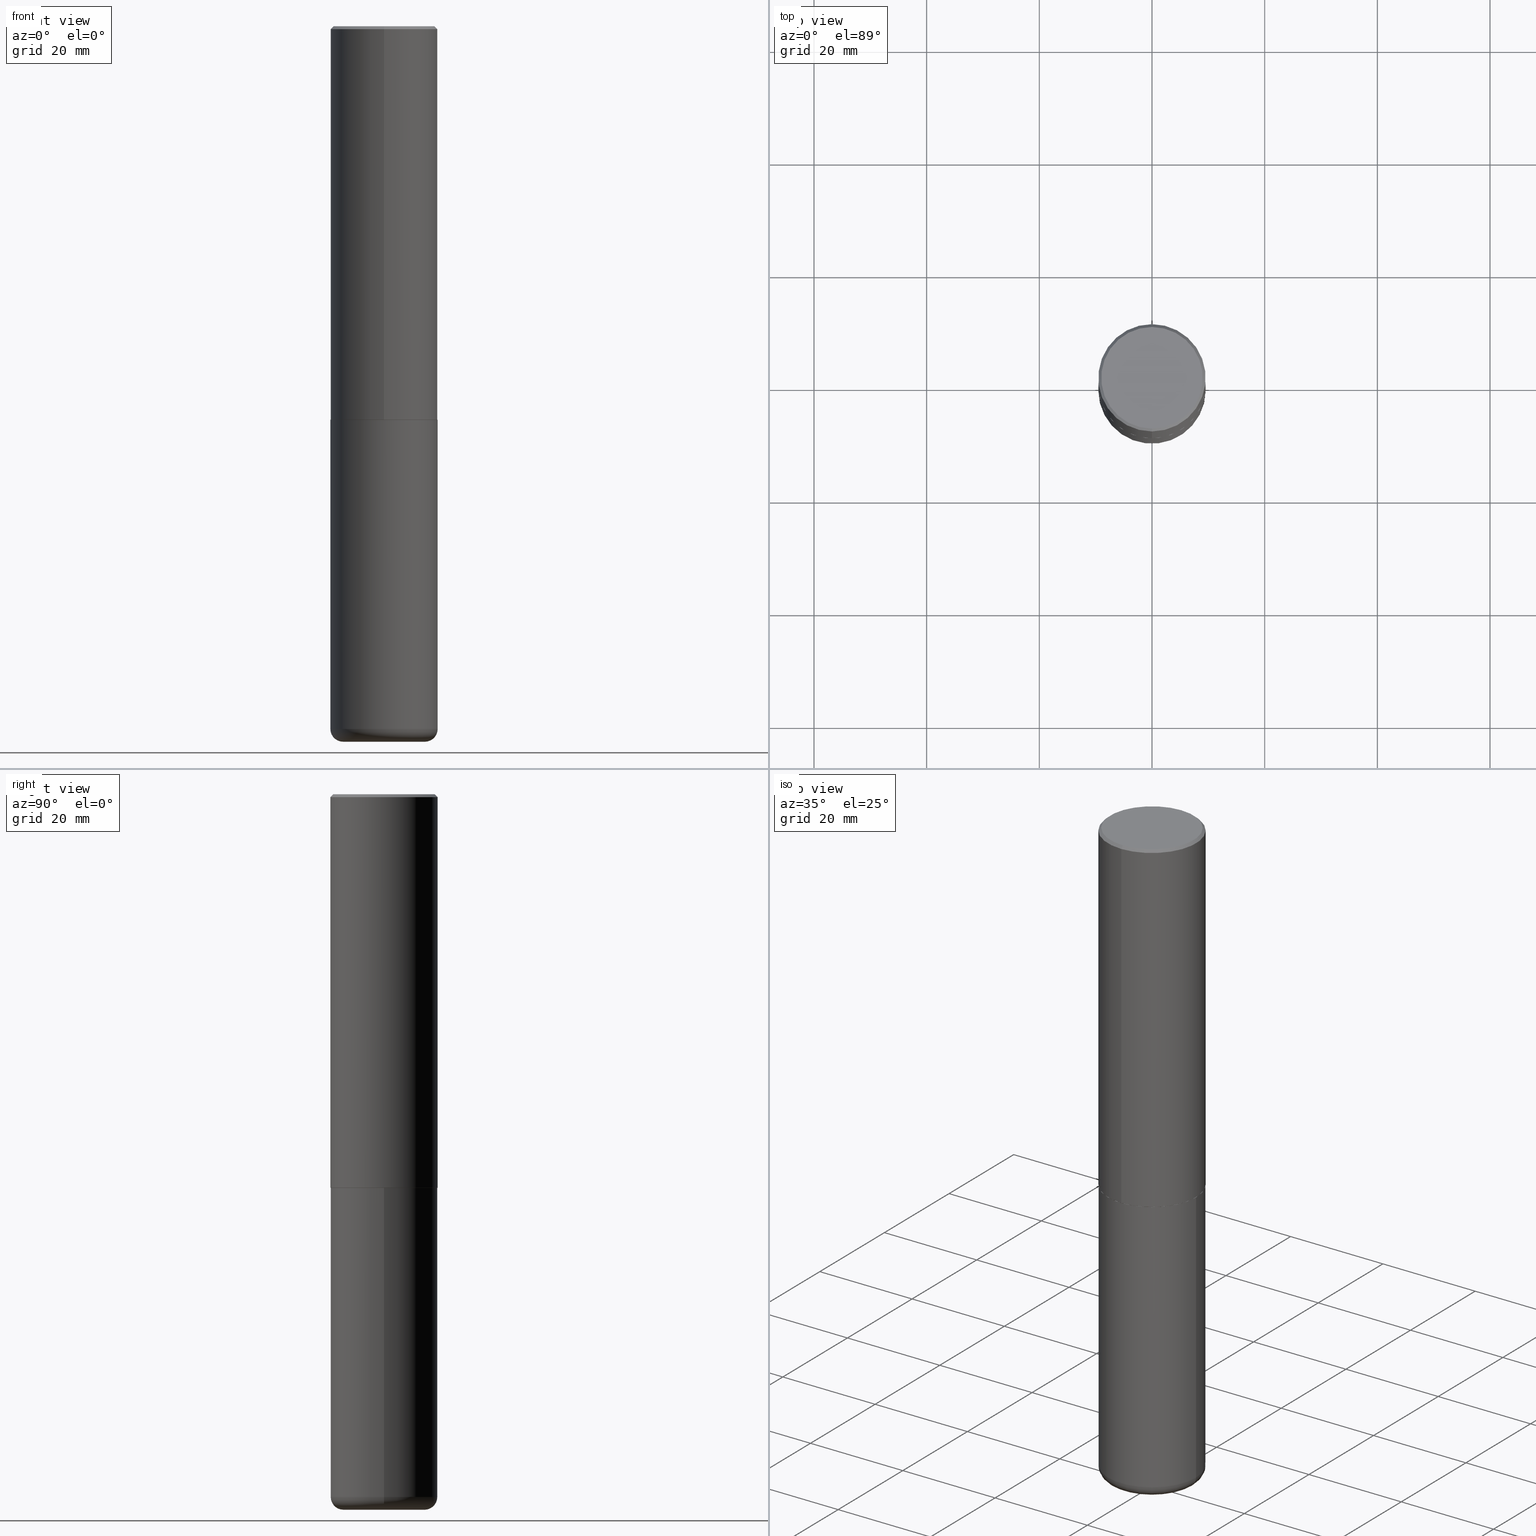
[diagram: canonical four-view strip — front | top / right | iso, engineering-drawing reading convention]
A machine part, canonical four-view strip (front | top / right | iso — engineering-drawing reading convention). The complete STEP part file that produces these views, byte-faithful:
ISO-10303-21;
HEADER;
FILE_DESCRIPTION (( 'STEP AP203' ),
    '1' );
FILE_NAME ('37658.STEP',
    '2024-03-02T07:15:18',
    ( '' ),
    ( '' ),
    'SwSTEP 2.0',
    'SolidWorks 2023',
    '' );
FILE_SCHEMA (( 'CONFIG_CONTROL_DESIGN' ));
ENDSEC;

DATA;
#1 = CONICAL_SURFACE ( 'NONE', #400, 0.3739999999999999991, 0.7853981633977213939 ) ;
#2 = DIRECTION ( 'NONE',  ( 1.000000000000000000, -6.982962677686269077E-15, 0.000000000000000000 ) ) ;
#3 = EDGE_CURVE ( 'NONE', #241, #293, #377, .T. ) ;
#4 = PRODUCT ( '37658', '37658', '', ( #370 ) ) ;
#5 = ORIENTED_EDGE ( 'NONE', *, *, #307, .F. ) ;
#6 = CARTESIAN_POINT ( 'NONE',  ( 6.724165036897648492E-29, -9.595832025636787455E-15, -2.749000000000000110 ) ) ;
#7 = EDGE_LOOP ( 'NONE', ( #394, #106, #360, #274 ) ) ;
#8 = DIRECTION ( 'NONE',  ( 1.000000000000000000, -6.982962677686269077E-15, 0.000000000000000000 ) ) ;
#9 = ORIENTED_EDGE ( 'NONE', *, *, #44, .T. ) ;
#10 = EDGE_CURVE ( 'NONE', #338, #136, #190, .T. ) ;
#11 = DIRECTION ( 'NONE',  ( -1.000000000000000000, 7.105427357600996337E-15, 0.000000000000000000 ) ) ;
#12 = CIRCLE ( 'NONE', #363, 0.08999999999999992728 ) ;
#13 = EDGE_LOOP ( 'NONE', ( #263, #389, #5, #268 ) ) ;
#14 = APPLICATION_PROTOCOL_DEFINITION ( 'international standard', 'config_control_design', 1994, #157 ) ;
#15 = DIRECTION ( 'NONE',  ( 0.000000000000000000, 0.000000000000000000, 1.000000000000000000 ) ) ;
#16 = EDGE_CURVE ( 'NONE', #366, #381, #24, .T. ) ;
#17 = VECTOR ( 'NONE', #99, 39.37007874015748143 ) ;
#18 = CC_DESIGN_APPROVAL ( #95, ( #122 ) ) ;
#19 = CARTESIAN_POINT ( 'NONE',  ( 0.3750000000000000555, -1.222018468595100145E-14, -2.750000000000000000 ) ) ;
#20 = EDGE_LOOP ( 'NONE', ( #239, #226 ) ) ;
#21 = COORDINATED_UNIVERSAL_TIME_OFFSET ( 5, 0, .BEHIND. ) ;
#22 = DIRECTION ( 'NONE',  ( 1.000000000000000000, -6.982962677686269077E-15, 4.883557194083113462E-29 ) ) ;
#23 = ADVANCED_FACE ( 'NONE', ( #194 ), #217, .T. ) ;
#24 = LINE ( 'NONE', #414, #339 ) ;
#25 = AXIS2_PLACEMENT_3D ( 'NONE', #124, #88, #22 ) ;
#26 = APPROVAL_ROLE ( '' ) ;
#27 = CARTESIAN_POINT ( 'NONE',  ( -2.618611004132351594E-15, -0.3750000000000002220, 1.308998548422625521E-15 ) ) ;
#28 = PERSON_AND_ORGANIZATION ( #143, #406 ) ;
#29 = DIRECTION ( 'NONE',  ( -6.982962677686266711E-15, -1.000000000000000000, 2.921762560068730595E-15 ) ) ;
#30 = SHAPE_DEFINITION_REPRESENTATION ( #145, #248 ) ;
#31 = ADVANCED_FACE ( 'NONE', ( #404 ), #1, .T. ) ;
#32 = FACE_OUTER_BOUND ( 'NONE', #327, .T. ) ;
#33 = CARTESIAN_POINT ( 'NONE',  ( 2.618611004132350411E-15, 0.3749999999999999445, -0.02000000000000139513 ) ) ;
#34 = CARTESIAN_POINT ( 'NONE',  ( 4.892080783483214581E-31, -6.981325591587361238E-17, -0.02000000000000008715 ) ) ;
#35 = DIRECTION ( 'NONE',  ( 1.000000000000000000, -6.982962677686266711E-15, 0.000000000000000000 ) ) ;
#36 = EDGE_LOOP ( 'NONE', ( #76, #331 ) ) ;
#37 = VECTOR ( 'NONE', #63, 39.37007874015748143 ) ;
#38 = LINE ( 'NONE', #260, #385 ) ;
#39 = ORIENTED_EDGE ( 'NONE', *, *, #271, .T. ) ;
#40 = CARTESIAN_POINT ( 'NONE',  ( 1.200725183836902132E-28, -1.714317337371984662E-14, -4.910000000000000142 ) ) ;
#41 = ADVANCED_FACE ( 'NONE', ( #32 ), #253, .F. ) ;
#42 = ORIENTED_EDGE ( 'NONE', *, *, #184, .F. ) ;
#43 = DIRECTION ( 'NONE',  ( 2.438088387897960049E-29, -3.491481338843145188E-15, -1.000000000000000000 ) ) ;
#44 = EDGE_CURVE ( 'NONE', #64, #104, #113, .T. ) ;
#45 = ORIENTED_EDGE ( 'NONE', *, *, #300, .F. ) ;
#46 = LINE ( 'NONE', #148, #170 ) ;
#47 = CIRCLE ( 'NONE', #109, 0.3549999999999999822 ) ;
#48 = EDGE_CURVE ( 'NONE', #118, #391, #47, .T. ) ;
#49 = CARTESIAN_POINT ( 'NONE',  ( 2.478951750578624209E-15, 0.3549999999999999822, -1.215853765202481601E-15 ) ) ;
#50 = UNCERTAINTY_MEASURE_WITH_UNIT (LENGTH_MEASURE( 1.000000000000000082E-05 ), #334, 'distance_accuracy_value', 'NONE');
#51 = DIRECTION ( 'NONE',  ( -2.445468806185136877E-29, 3.491481338843145188E-15, 1.000000000000000000 ) ) ;
#52 = VERTEX_POINT ( 'NONE', #280 ) ;
#53 = AXIS2_PLACEMENT_3D ( 'NONE', #313, #56, #375 ) ;
#54 = DATE_TIME_ROLE ( 'creation_date' ) ;
#55 = CYLINDRICAL_SURFACE ( 'NONE', #141, 0.3749999999999999445 ) ;
#56 = DIRECTION ( 'NONE',  ( -2.446040391741596045E-29, 3.490662795793665557E-15, 1.000000000000000000 ) ) ;
#57 = PERSON_AND_ORGANIZATION_ROLE ( 'classification_officer' ) ;
#58 = DIRECTION ( 'NONE',  ( -2.445468806185136877E-29, 3.491481338843145188E-15, 1.000000000000000000 ) ) ;
#59 = LOCAL_TIME ( 2, 15, 18.00000000000000000, #21 ) ;
#60 = DIRECTION ( 'NONE',  ( -2.446040391741596606E-29, 3.490662795793665557E-15, 1.000000000000000000 ) ) ;
#61 = EDGE_CURVE ( 'NONE', #136, #348, #412, .T. ) ;
#62 = PERSON_AND_ORGANIZATION ( #143, #406 ) ;
#63 = DIRECTION ( 'NONE',  ( 5.024295867789434219E-15, 0.7071067811867430830, 0.7071067811863519514 ) ) ;
#64 = VERTEX_POINT ( 'NONE', #344 ) ;
#65 = CARTESIAN_POINT ( 'NONE',  ( 6.726611077289389265E-29, -9.599322688432580971E-15, -2.750000000000000000 ) ) ;
#66 = AXIS2_PLACEMENT_3D ( 'NONE', #410, #126, #380 ) ;
#67 = CARTESIAN_POINT ( 'NONE',  ( -2.611628041454596160E-15, -0.3740000000000096581, -2.749999999999998668 ) ) ;
#68 = ADVANCED_FACE ( 'NONE', ( #154 ), #55, .T. ) ;
#69 = DIRECTION ( 'NONE',  ( -2.446040391741596606E-29, 3.490662795793665557E-15, 1.000000000000000000 ) ) ;
#70 = CARTESIAN_POINT ( 'NONE',  ( 0.000000000000000000, 0.000000000000000000, 0.000000000000000000 ) ) ;
#71 = ORIENTED_EDGE ( 'NONE', *, *, #86, .T. ) ;
#72 = CIRCLE ( 'NONE', #303, 0.3750000000000000555 ) ;
#73 = DIRECTION ( 'NONE',  ( 1.000000000000000000, -6.982962677686273810E-15, 0.000000000000000000 ) ) ;
#74 = ORIENTED_EDGE ( 'NONE', *, *, #283, .F. ) ;
#75 = ADVANCED_FACE ( 'NONE', ( #409 ), #225, .F. ) ;
#76 = ORIENTED_EDGE ( 'NONE', *, *, #214, .T. ) ;
#77 = PERSON_AND_ORGANIZATION ( #143, #406 ) ;
#78 = ORIENTED_EDGE ( 'NONE', *, *, #408, .T. ) ;
#79 = CIRCLE ( 'NONE', #413, 0.3739999999999999991 ) ;
#80 = DIRECTION ( 'NONE',  ( 7.105427357601001859E-15, 1.000000000000000000, -3.491481338843145583E-15 ) ) ;
#81 = LOCAL_TIME ( 2, 15, 18.00000000000000000, #112 ) ;
#82 = APPROVAL ( #269, 'UNSPECIFIED' ) ;
#83 = DIRECTION ( 'NONE',  ( -1.000000000000000000, 6.982962677686265922E-15, -4.876176775795935793E-29 ) ) ;
#84 = ORIENTED_EDGE ( 'NONE', *, *, #3, .T. ) ;
#85 = CONICAL_SURFACE ( 'NONE', #333, 0.3739999999999999991, 0.7853981633977213939 ) ;
#86 = EDGE_CURVE ( 'NONE', #306, #381, #249, .T. ) ;
#87 = APPROVAL_STATUS ( 'not_yet_approved' ) ;
#88 = DIRECTION ( 'NONE',  ( -2.445468806185136597E-29, 3.491481338843145583E-15, 1.000000000000000000 ) ) ;
#89 = PERSON_AND_ORGANIZATION ( #143, #406 ) ;
#90 = CARTESIAN_POINT ( 'NONE',  ( 6.726611077289389265E-29, -9.599322688432580971E-15, -2.750000000000000000 ) ) ;
#91 = COORDINATED_UNIVERSAL_TIME_OFFSET ( 5, 0, .BEHIND. ) ;
#92 = CARTESIAN_POINT ( 'NONE',  ( -1.141397163745304909E-45, 1.628849886601155835E-31, 4.666305460853910467E-17 ) ) ;
#93 = AXIS2_PLACEMENT_3D ( 'NONE', #296, #43, #83 ) ;
#94 = AXIS2_PLACEMENT_3D ( 'NONE', #301, #15, #240 ) ;
#95 = APPROVAL ( #96, 'UNSPECIFIED' ) ;
#96 = APPROVAL_STATUS ( 'not_yet_approved' ) ;
#97 = FACE_OUTER_BOUND ( 'NONE', #291, .T. ) ;
#98 = ORIENTED_EDGE ( 'NONE', *, *, #319, .F. ) ;
#99 = DIRECTION ( 'NONE',  ( -2.446040391741596606E-29, 3.490662795793665557E-15, 1.000000000000000000 ) ) ;
#100 = DIRECTION ( 'NONE',  ( -2.445468806185136597E-29, 3.491481338843145583E-15, 1.000000000000000000 ) ) ;
#101 = CIRCLE ( 'NONE', #121, 0.08999999999999992728 ) ;
#102 = CARTESIAN_POINT ( 'NONE',  ( 2.660982545421643429E-15, 0.3739999999999903957, -2.750000000000000888 ) ) ;
#103 = DIRECTION ( 'NONE',  ( -2.446040391741596606E-29, 3.490662795793665557E-15, 1.000000000000000000 ) ) ;
#104 = VERTEX_POINT ( 'NONE', #257 ) ;
#105 = FACE_OUTER_BOUND ( 'NONE', #403, .T. ) ;
#106 = ORIENTED_EDGE ( 'NONE', *, *, #214, .F. ) ;
#107 = CLOSED_SHELL ( 'NONE', ( #31, #337, #108, #116, #130, #215, #75, #382 ) ) ;
#108 = ADVANCED_FACE ( 'NONE', ( #97 ), #192, .T. ) ;
#109 = AXIS2_PLACEMENT_3D ( 'NONE', #92, #350, #308 ) ;
#110 = EDGE_LOOP ( 'NONE', ( #365, #364, #177, #74 ) ) ;
#111 = ORIENTED_EDGE ( 'NONE', *, *, #86, .F. ) ;
#112 = COORDINATED_UNIVERSAL_TIME_OFFSET ( 5, 0, .BEHIND. ) ;
#113 = CIRCLE ( 'NONE', #178, 0.2850000000000000311 ) ;
#114 = CARTESIAN_POINT ( 'NONE',  ( 6.724165036897648492E-29, -9.595832025636787455E-15, -2.749000000000000110 ) ) ;
#115 = DIRECTION ( 'NONE',  ( 1.000000000000000000, -6.982962677686269077E-15, 4.883557194083113462E-29 ) ) ;
#116 = ADVANCED_FACE ( 'NONE', ( #160 ), #205, .T. ) ;
#117 = DATE_AND_TIME ( #119, #304 ) ;
#118 = VERTEX_POINT ( 'NONE', #188 ) ;
#119 = CALENDAR_DATE ( 2024, 2, 3 ) ;
#120 = CARTESIAN_POINT ( 'NONE',  ( 6.726611077289389265E-29, -9.599322688432580971E-15, -2.750000000000000000 ) ) ;
#121 = AXIS2_PLACEMENT_3D ( 'NONE', #232, #204, #73 ) ;
#122 = SECURITY_CLASSIFICATION ( '', '', #195 ) ;
#123 = APPROVAL_DATE_TIME ( #117, #329 ) ;
#124 = CARTESIAN_POINT ( 'NONE',  ( 1.200725183836902132E-28, -1.714317337371984662E-14, -4.910000000000000142 ) ) ;
#125 = PERSON_AND_ORGANIZATION_ROLE ( 'creator' ) ;
#126 = DIRECTION ( 'NONE',  ( -2.445468806185136597E-29, 3.491481338843145583E-15, 1.000000000000000000 ) ) ;
#127 = EDGE_CURVE ( 'NONE', #104, #64, #230, .T. ) ;
#128 = CARTESIAN_POINT ( 'NONE',  ( 0.000000000000000000, 0.000000000000000000, 0.000000000000000000 ) ) ;
#129 = DIRECTION ( 'NONE',  ( 1.000000000000000000, -6.982962677686266711E-15, 4.876176775795935793E-29 ) ) ;
#130 = ADVANCED_FACE ( 'NONE', ( #105 ), #386, .T. ) ;
#131 = CARTESIAN_POINT ( 'NONE',  ( -2.618611004132284935E-15, -0.3750000000000099920, -2.748999999999999222 ) ) ;
#132 = LINE ( 'NONE', #33, #155 ) ;
#133 = CLOSED_SHELL ( 'NONE', ( #68, #23, #41, #197, #346, #341 ) ) ;
#134 = AXIS2_PLACEMENT_3D ( 'NONE', #40, #234, #8 ) ;
#135 = DIRECTION ( 'NONE',  ( -4.851104656540954809E-15, -0.7071067811865486830, -0.7071067811865463515 ) ) ;
#136 = VERTEX_POINT ( 'NONE', #102 ) ;
#137 = DIRECTION ( 'NONE',  ( -6.982962677686266711E-15, -1.000000000000000000, 2.921762560068730595E-15 ) ) ;
#138 = EDGE_LOOP ( 'NONE', ( #396, #330, #287, #208 ) ) ;
#139 = FACE_OUTER_BOUND ( 'NONE', #266, .T. ) ;
#140 = ORIENTED_EDGE ( 'NONE', *, *, #388, .F. ) ;
#141 = AXIS2_PLACEMENT_3D ( 'NONE', #128, #256, #129 ) ;
#142 = ORIENTED_EDGE ( 'NONE', *, *, #184, .T. ) ;
#143 = PERSON ( 'UNSPECIFIED', 'UNSPECIFIED', 'UNSPECIFIED', ('UNSPECIFIED'), ('UNSPECIFIED'), ('UNSPECIFIED') ) ;
#144 = PERSON_AND_ORGANIZATION ( #143, #406 ) ;
#145 = PRODUCT_DEFINITION_SHAPE ( 'NONE', 'NONE',  #361 ) ;
#146 = CARTESIAN_POINT ( 'NONE',  ( 2.664535259100411196E-15, 0.3749999999999907296, -2.749000000000000998 ) ) ;
#147 = TOROIDAL_SURFACE ( 'NONE', #379, 0.2850000000000000311, 0.08999999999999989952 ) ;
#148 = CARTESIAN_POINT ( 'NONE',  ( -0.3749999999999999445, 2.664535259100375303E-15, -1.844600658845589318E-29 ) ) ;
#149 = CC_DESIGN_APPROVAL ( #329, ( #200 ) ) ;
#150 = DESIGN_CONTEXT ( 'detailed design', #157, 'design' ) ;
#151 = PLANE ( 'NONE',  #393 ) ;
#152 = ORIENTED_EDGE ( 'NONE', *, *, #408, .F. ) ;
#153 = DATE_TIME_ROLE ( 'classification_date' ) ;
#154 = FACE_OUTER_BOUND ( 'NONE', #297, .T. ) ;
#155 = VECTOR ( 'NONE', #416, 39.37007874015748143 ) ;
#156 = DIRECTION ( 'NONE',  ( 1.000000000000000000, -6.982962677686266711E-15, 0.000000000000000000 ) ) ;
#157 = APPLICATION_CONTEXT ( 'configuration controlled 3d designs of mechanical parts and assemblies' ) ;
#158 = CARTESIAN_POINT ( 'NONE',  ( 6.725039217009124520E-29, -9.601573681818649859E-15, -2.750000000000000000 ) ) ;
#159 = ORIENTED_EDGE ( 'NONE', *, *, #300, .T. ) ;
#160 = FACE_OUTER_BOUND ( 'NONE', #7, .T. ) ;
#161 = AXIS2_PLACEMENT_3D ( 'NONE', #34, #103, #174 ) ;
#162 = CC_DESIGN_DATE_AND_TIME_ASSIGNMENT ( #349, #54, ( #361 ) ) ;
#163 = ORIENTED_EDGE ( 'NONE', *, *, #307, .T. ) ;
#164 = CARTESIAN_POINT ( 'NONE',  ( 2.664535259100376880E-15, 0.3750000000000002220, -1.308998548422625521E-15 ) ) ;
#165 = EDGE_CURVE ( 'NONE', #136, #338, #79, .T. ) ;
#166 = CYLINDRICAL_SURFACE ( 'NONE', #168, 0.3749999999999999445 ) ;
#167 = LINE ( 'NONE', #236, #255 ) ;
#168 = AXIS2_PLACEMENT_3D ( 'NONE', #198, #289, #171 ) ;
#169 = ORIENTED_EDGE ( 'NONE', *, *, #283, .T. ) ;
#170 = VECTOR ( 'NONE', #51, 39.37007874015748143 ) ;
#171 = DIRECTION ( 'NONE',  ( 1.000000000000000000, -6.982962677686266711E-15, 4.876176775795935793E-29 ) ) ;
#172 = CC_DESIGN_PERSON_AND_ORGANIZATION_ASSIGNMENT ( #62, #342, ( #200 ) ) ;
#173 = ORIENTED_EDGE ( 'NONE', *, *, #415, .T. ) ;
#174 = DIRECTION ( 'NONE',  ( -6.982962677686265922E-15, -1.000000000000000000, 3.494488891895536035E-15 ) ) ;
#175 = ORIENTED_EDGE ( 'NONE', *, *, #10, .F. ) ;
#176 = APPLICATION_PROTOCOL_DEFINITION ( 'international standard', 'config_control_design', 1994, #322 ) ;
#177 = ORIENTED_EDGE ( 'NONE', *, *, #238, .T. ) ;
#178 = AXIS2_PLACEMENT_3D ( 'NONE', #378, #193, #156 ) ;
#179 = LOCAL_TIME ( 2, 15, 18.00000000000000000, #91 ) ;
#180 = DIRECTION ( 'NONE',  ( 6.982962677686265922E-15, 1.000000000000000000, -3.490662795793665557E-15 ) ) ;
#181 = CIRCLE ( 'NONE', #286, 0.3549999999999999822 ) ;
#182 = CARTESIAN_POINT ( 'NONE',  ( 1.200725183836902132E-28, -1.714317337371984662E-14, -4.910000000000000142 ) ) ;
#183 = AXIS2_PLACEMENT_3D ( 'NONE', #114, #216, #336 ) ;
#184 = EDGE_CURVE ( 'NONE', #293, #52, #340, .T. ) ;
#185 = ORIENTED_EDGE ( 'NONE', *, *, #16, .T. ) ;
#186 = DATE_AND_TIME ( #402, #179 ) ;
#187 = DIRECTION ( 'NONE',  ( 6.982962677686265922E-15, 1.000000000000000000, -3.494488891895536035E-15 ) ) ;
#188 = CARTESIAN_POINT ( 'NONE',  ( -2.504081769186608216E-15, -0.3549999999999999822, 1.285848347115290366E-15 ) ) ;
#189 = EDGE_CURVE ( 'NONE', #104, #366, #101, .T. ) ;
#190 = CIRCLE ( 'NONE', #418, 0.3739999999999999991 ) ;
#191 = APPROVAL_DATE_TIME ( #186, #95 ) ;
#192 = CONICAL_SURFACE ( 'NONE', #347, 0.3750000000000000555, 0.7853981633974465026 ) ;
#193 = DIRECTION ( 'NONE',  ( -2.445468806185136597E-29, 3.491481338843145583E-15, 1.000000000000000000 ) ) ;
#194 = FACE_OUTER_BOUND ( 'NONE', #13, .T. ) ;
#195 = SECURITY_CLASSIFICATION_LEVEL ( 'unclassified' ) ;
#196 = CARTESIAN_POINT ( 'NONE',  ( 4.892080783483214581E-31, -6.981325591587361238E-17, -0.02000000000000008715 ) ) ;
#197 = ADVANCED_FACE ( 'NONE', ( #139 ), #166, .T. ) ;
#198 = CARTESIAN_POINT ( 'NONE',  ( 0.000000000000000000, 0.000000000000000000, 0.000000000000000000 ) ) ;
#199 = CIRCLE ( 'NONE', #211, 0.3749999999999999445 ) ;
#200 = PRODUCT_DEFINITION_FORMATION_WITH_SPECIFIED_SOURCE ( 'ANY', '', #4, .NOT_KNOWN. ) ;
#201 = FACE_OUTER_BOUND ( 'NONE', #20, .T. ) ;
#202 = CARTESIAN_POINT ( 'NONE',  ( -2.572686749164323547E-15, -0.3750000000000001110, -0.01999999999999877570 ) ) ;
#203 = EDGE_CURVE ( 'NONE', #348, #52, #417, .T. ) ;
#204 = DIRECTION ( 'NONE',  ( -6.982962677686266711E-15, -1.000000000000000000, 3.491481338843145583E-15 ) ) ;
#205 = CONICAL_SURFACE ( 'NONE', #278, 0.3750000000000000555, 0.7853981633974465026 ) ;
#206 = VERTEX_POINT ( 'NONE', #358 ) ;
#207 = CARTESIAN_POINT ( 'NONE',  ( -1.141397163745304909E-45, 1.628849886601155835E-31, 4.666305460853910467E-17 ) ) ;
#208 = ORIENTED_EDGE ( 'NONE', *, *, #238, .F. ) ;
#209 = ORIENTED_EDGE ( 'NONE', *, *, #189, .T. ) ;
#210 = EDGE_LOOP ( 'NONE', ( #173, #219, #42, #235 ) ) ;
#211 = AXIS2_PLACEMENT_3D ( 'NONE', #384, #100, #2 ) ;
#212 = CARTESIAN_POINT ( 'NONE',  ( 4.892080783483214581E-31, -6.981325591587361238E-17, -0.02000000000000008715 ) ) ;
#213 = FACE_OUTER_BOUND ( 'NONE', #254, .T. ) ;
#214 = EDGE_CURVE ( 'NONE', #391, #118, #181, .T. ) ;
#215 = ADVANCED_FACE ( 'NONE', ( #318 ), #85, .T. ) ;
#216 = DIRECTION ( 'NONE',  ( -2.446040391741596606E-29, 3.490662795793665557E-15, 1.000000000000000000 ) ) ;
#217 = TOROIDAL_SURFACE ( 'NONE', #25, 0.2850000000000000311, 0.08999999999999989952 ) ;
#218 = CALENDAR_DATE ( 2024, 2, 3 ) ;
#219 = ORIENTED_EDGE ( 'NONE', *, *, #203, .T. ) ;
#220 = ORIENTED_EDGE ( 'NONE', *, *, #165, .F. ) ;
#221 = MANIFOLD_SOLID_BREP ( 'Body-Move/Copy2[1]', #133 ) ;
#222 = DIRECTION ( 'NONE',  ( -2.446040391741596606E-29, 3.490662795793665557E-15, 1.000000000000000000 ) ) ;
#223 = CARTESIAN_POINT ( 'NONE',  ( 2.657429831742841742E-15, 0.3739999999999903957, -2.750000000000000888 ) ) ;
#224 = PERSON_AND_ORGANIZATION_ROLE ( 'creator' ) ;
#225 = PLANE ( 'NONE',  #53 ) ;
#226 = ORIENTED_EDGE ( 'NONE', *, *, #44, .F. ) ;
#227 = EDGE_CURVE ( 'NONE', #391, #52, #132, .T. ) ;
#228 = DIRECTION ( 'NONE',  ( -2.446040391741596606E-29, 3.490662795793665557E-15, 1.000000000000000000 ) ) ;
#229 = FACE_OUTER_BOUND ( 'NONE', #210, .T. ) ;
#230 = CIRCLE ( 'NONE', #354, 0.2850000000000000311 ) ;
#231 = CC_DESIGN_SECURITY_CLASSIFICATION ( #122, ( #200 ) ) ;
#232 = CARTESIAN_POINT ( 'NONE',  ( 0.2850000000000000311, -1.913331773686043011E-14, -4.910000000000000142 ) ) ;
#233 = CC_DESIGN_DATE_AND_TIME_ASSIGNMENT ( #376, #153, ( #122 ) ) ;
#234 = DIRECTION ( 'NONE',  ( -2.445468806185136597E-29, 3.491481338843145583E-15, 1.000000000000000000 ) ) ;
#235 = ORIENTED_EDGE ( 'NONE', *, *, #3, .F. ) ;
#236 = CARTESIAN_POINT ( 'NONE',  ( -2.611628041454596160E-15, -0.3740000000000096581, -2.749999999999998668 ) ) ;
#237 = ORIENTED_EDGE ( 'NONE', *, *, #227, .F. ) ;
#238 = EDGE_CURVE ( 'NONE', #338, #241, #167, .T. ) ;
#239 = ORIENTED_EDGE ( 'NONE', *, *, #127, .F. ) ;
#240 = DIRECTION ( 'NONE',  ( 1.000000000000000000, 0.000000000000000000, 0.000000000000000000 ) ) ;
#241 = VERTEX_POINT ( 'NONE', #131 ) ;
#242 = AXIS2_PLACEMENT_3D ( 'NONE', #320, #328, #258 ) ;
#243 = APPROVAL_PERSON_ORGANIZATION ( #89, #95, #246 ) ;
#244 = CC_DESIGN_PERSON_AND_ORGANIZATION_ASSIGNMENT ( #309, #224, ( #200 ) ) ;
#245 = CARTESIAN_POINT ( 'NONE',  ( -0.2850000000000000311, -1.511812657680356008E-14, -4.910000000000000142 ) ) ;
#246 = APPROVAL_ROLE ( '' ) ;
#247 = ORIENTED_EDGE ( 'NONE', *, *, #372, .F. ) ;
#248 = ADVANCED_BREP_SHAPE_REPRESENTATION ( '37658', ( #221, #357, #94 ), #356 ) ;
#249 = CIRCLE ( 'NONE', #66, 0.3750000000000000555 ) ;
#250 = APPROVAL_PERSON_ORGANIZATION ( #281, #329, #26 ) ;
#251 = DIRECTION ( 'NONE',  ( 2.438088387897960049E-29, -3.491481338843145188E-15, -1.000000000000000000 ) ) ;
#252 = DATE_AND_TIME ( #218, #81 ) ;
#253 = PLANE ( 'NONE',  #369 ) ;
#254 = EDGE_LOOP ( 'NONE', ( #140, #9, #209, #98 ) ) ;
#255 = VECTOR ( 'NONE', #288, 39.37007874015748143 ) ;
#256 = DIRECTION ( 'NONE',  ( -2.445468806185136597E-29, 3.491481338843145583E-15, 1.000000000000000000 ) ) ;
#257 = CARTESIAN_POINT ( 'NONE',  ( 0.2850000000000000311, -1.944755105735631653E-14, -5.000000000000000000 ) ) ;
#258 = DIRECTION ( 'NONE',  ( 1.000000000000000000, -6.982962677686266711E-15, 0.000000000000000000 ) ) ;
#259 = DIRECTION ( 'NONE',  ( -2.445468806185136597E-29, 3.491481338843145583E-15, 1.000000000000000000 ) ) ;
#260 = CARTESIAN_POINT ( 'NONE',  ( -2.572686749164323547E-15, -0.3750000000000001110, -0.01999999999999877570 ) ) ;
#261 = ORIENTED_EDGE ( 'NONE', *, *, #16, .F. ) ;
#262 = CYLINDRICAL_SURFACE ( 'NONE', #325, 0.3750000000000002220 ) ;
#263 = ORIENTED_EDGE ( 'NONE', *, *, #127, .T. ) ;
#264 = DIRECTION ( 'NONE',  ( -6.982962677686266711E-15, -1.000000000000000000, 3.490662795793665951E-15 ) ) ;
#265 = CIRCLE ( 'NONE', #317, 0.3750000000000003886 ) ;
#266 = EDGE_LOOP ( 'NONE', ( #152, #323, #185, #111 ) ) ;
#267 = LOCAL_TIME ( 2, 15, 18.00000000000000000, #312 ) ;
#268 = ORIENTED_EDGE ( 'NONE', *, *, #189, .F. ) ;
#269 = APPROVAL_STATUS ( 'not_yet_approved' ) ;
#270 = FACE_OUTER_BOUND ( 'NONE', #36, .T. ) ;
#271 = EDGE_CURVE ( 'NONE', #118, #293, #38, .T. ) ;
#272 =( NAMED_UNIT ( * ) SI_UNIT ( $, .STERADIAN. ) SOLID_ANGLE_UNIT ( ) );
#273 = APPROVAL_DATE_TIME ( #252, #82 ) ;
#274 = ORIENTED_EDGE ( 'NONE', *, *, #372, .T. ) ;
#275 = CC_DESIGN_PERSON_AND_ORGANIZATION_ASSIGNMENT ( #407, #125, ( #361 ) ) ;
#276 = COORDINATED_UNIVERSAL_TIME_OFFSET ( 5, 0, .BEHIND. ) ;
#277 = DIRECTION ( 'NONE',  ( 2.446040391741596606E-29, -3.490662795793665557E-15, -1.000000000000000000 ) ) ;
#278 = AXIS2_PLACEMENT_3D ( 'NONE', #383, #343, #187 ) ;
#279 = APPROVAL_PERSON_ORGANIZATION ( #144, #82, #397 ) ;
#280 = CARTESIAN_POINT ( 'NONE',  ( 2.618611004132350411E-15, 0.3749999999999999445, -0.02000000000000139513 ) ) ;
#281 = PERSON_AND_ORGANIZATION ( #143, #406 ) ;
#282 = DIRECTION ( 'NONE',  ( -2.446040391741596606E-29, 3.490662795793665557E-15, 1.000000000000000000 ) ) ;
#283 = EDGE_CURVE ( 'NONE', #348, #241, #265, .T. ) ;
#284 = DIRECTION ( 'NONE',  ( -6.982962677686266711E-15, -1.000000000000000000, 2.921762560068730595E-15 ) ) ;
#285 = PRODUCT_RELATED_PRODUCT_CATEGORY ( 'detail', '', ( #4 ) ) ;
#286 = AXIS2_PLACEMENT_3D ( 'NONE', #207, #228, #352 ) ;
#287 = ORIENTED_EDGE ( 'NONE', *, *, #415, .F. ) ;
#288 = DIRECTION ( 'NONE',  ( -4.937700262165896205E-15, -0.7071067811867381980, 0.7071067811863568364 ) ) ;
#289 = DIRECTION ( 'NONE',  ( -2.445468806185136597E-29, 3.491481338843145583E-15, 1.000000000000000000 ) ) ;
#290 = DIRECTION ( 'NONE',  ( -2.446040391741596606E-29, 3.490662795793665557E-15, 1.000000000000000000 ) ) ;
#291 = EDGE_LOOP ( 'NONE', ( #295, #39, #142, #237 ) ) ;
#292 = CARTESIAN_POINT ( 'NONE',  ( 0.000000000000000000, 0.000000000000000000, 0.000000000000000000 ) ) ;
#293 = VERTEX_POINT ( 'NONE', #202 ) ;
#294 = DIRECTION ( 'NONE',  ( -2.446040391741596606E-29, 3.490662795793665557E-15, 1.000000000000000000 ) ) ;
#295 = ORIENTED_EDGE ( 'NONE', *, *, #48, .F. ) ;
#296 = CARTESIAN_POINT ( 'NONE',  ( 1.222734403092568523E-28, -1.745740669421572989E-14, -5.000000000000000000 ) ) ;
#297 = EDGE_LOOP ( 'NONE', ( #163, #78, #45, #261 ) ) ;
#298 = CIRCLE ( 'NONE', #183, 0.3750000000000003886 ) ;
#299 = PERSON_AND_ORGANIZATION_ROLE ( 'design_owner' ) ;
#300 = EDGE_CURVE ( 'NONE', #381, #306, #374, .T. ) ;
#301 = CARTESIAN_POINT ( 'NONE',  ( 0.000000000000000000, 0.000000000000000000, 0.000000000000000000 ) ) ;
#302 =( NAMED_UNIT ( * ) PLANE_ANGLE_UNIT ( ) SI_UNIT ( $, .RADIAN. ) );
#303 = AXIS2_PLACEMENT_3D ( 'NONE', #212, #335, #395 ) ;
#304 = LOCAL_TIME ( 2, 15, 18.00000000000000000, #276 ) ;
#305 =( LENGTH_UNIT ( ) NAMED_UNIT ( * ) SI_UNIT ( $, .METRE. ) );
#306 = VERTEX_POINT ( 'NONE', #321 ) ;
#307 = EDGE_CURVE ( 'NONE', #366, #206, #199, .T. ) ;
#308 = DIRECTION ( 'NONE',  ( -6.982962677686265922E-15, -1.000000000000000000, 3.490662795793665557E-15 ) ) ;
#309 = PERSON_AND_ORGANIZATION ( #143, #406 ) ;
#310 = CARTESIAN_POINT ( 'NONE',  ( 1.222734403092568523E-28, -1.745740669421572989E-14, -5.000000000000000000 ) ) ;
#311 = CIRCLE ( 'NONE', #134, 0.3749999999999999445 ) ;
#312 = COORDINATED_UNIVERSAL_TIME_OFFSET ( 5, 0, .BEHIND. ) ;
#313 = CARTESIAN_POINT ( 'NONE',  ( 6.726611077289389265E-29, -9.599322688432580971E-15, -2.750000000000000000 ) ) ;
#314 = CC_DESIGN_PERSON_AND_ORGANIZATION_ASSIGNMENT ( #77, #299, ( #4 ) ) ;
#315 = CALENDAR_DATE ( 2024, 2, 3 ) ;
#316 = DIRECTION ( 'NONE',  ( 6.982962677686265922E-15, 1.000000000000000000, -3.494488891895536035E-15 ) ) ;
#317 = AXIS2_PLACEMENT_3D ( 'NONE', #6, #362, #387 ) ;
#318 = FACE_OUTER_BOUND ( 'NONE', #110, .T. ) ;
#319 = EDGE_CURVE ( 'NONE', #206, #366, #311, .T. ) ;
#320 = CARTESIAN_POINT ( 'NONE',  ( 6.725039217009124520E-29, -9.601573681818649859E-15, -2.750000000000000000 ) ) ;
#321 = CARTESIAN_POINT ( 'NONE',  ( -0.3750000000000000555, -1.070783826866887333E-14, -2.750000000000000000 ) ) ;
#322 = APPLICATION_CONTEXT ( 'configuration controlled 3d designs of mechanical parts and assemblies' ) ;
#323 = ORIENTED_EDGE ( 'NONE', *, *, #319, .T. ) ;
#324 = CARTESIAN_POINT ( 'NONE',  ( 6.726611077289389265E-29, -9.599322688432580971E-15, -2.750000000000000000 ) ) ;
#325 = AXIS2_PLACEMENT_3D ( 'NONE', #292, #390, #355 ) ;
#326 = CC_DESIGN_APPROVAL ( #82, ( #361 ) ) ;
#327 = EDGE_LOOP ( 'NONE', ( #159, #71 ) ) ;
#328 = DIRECTION ( 'NONE',  ( -2.445468806185136597E-29, 3.491481338843145583E-15, 1.000000000000000000 ) ) ;
#329 = APPROVAL ( #87, 'UNSPECIFIED' ) ;
#330 = ORIENTED_EDGE ( 'NONE', *, *, #61, .T. ) ;
#331 = ORIENTED_EDGE ( 'NONE', *, *, #48, .T. ) ;
#332 = CARTESIAN_POINT ( 'NONE',  ( 0.3749999999999999445, -1.976178437785219664E-14, -4.910000000000000142 ) ) ;
#333 = AXIS2_PLACEMENT_3D ( 'NONE', #324, #294, #137 ) ;
#334 =( CONVERSION_BASED_UNIT ( 'INCH', #392 ) LENGTH_UNIT ( ) NAMED_UNIT ( #398 ) );
#335 = DIRECTION ( 'NONE',  ( -2.446040391741596606E-29, 3.490662795793665557E-15, 1.000000000000000000 ) ) ;
#336 = DIRECTION ( 'NONE',  ( -6.982962677686265922E-15, -1.000000000000000000, 2.913971193241877611E-15 ) ) ;
#337 = ADVANCED_FACE ( 'NONE', ( #229 ), #262, .T. ) ;
#338 = VERTEX_POINT ( 'NONE', #67 ) ;
#339 = VECTOR ( 'NONE', #58, 39.37007874015748143 ) ;
#340 = CIRCLE ( 'NONE', #161, 0.3750000000000000555 ) ;
#341 = ADVANCED_FACE ( 'NONE', ( #201 ), #401, .T. ) ;
#342 = PERSON_AND_ORGANIZATION_ROLE ( 'design_supplier' ) ;
#343 = DIRECTION ( 'NONE',  ( 2.446040391741596606E-29, -3.490662795793665557E-15, -1.000000000000000000 ) ) ;
#344 = CARTESIAN_POINT ( 'NONE',  ( -0.2850000000000000311, -1.495549900595945556E-14, -5.000000000000000000 ) ) ;
#345 = DIRECTION ( 'NONE',  ( -1.000000000000000000, 6.982962677686265922E-15, -4.876176775795935793E-29 ) ) ;
#346 = ADVANCED_FACE ( 'NONE', ( #213 ), #147, .T. ) ;
#347 = AXIS2_PLACEMENT_3D ( 'NONE', #196, #277, #316 ) ;
#348 = VERTEX_POINT ( 'NONE', #146 ) ;
#349 = DATE_AND_TIME ( #411, #267 ) ;
#350 = DIRECTION ( 'NONE',  ( -2.446040391741596606E-29, 3.490662795793665557E-15, 1.000000000000000000 ) ) ;
#351 = ORIENTED_EDGE ( 'NONE', *, *, #203, .F. ) ;
#352 = DIRECTION ( 'NONE',  ( -6.982962677686265922E-15, -1.000000000000000000, 3.490662795793665557E-15 ) ) ;
#353 = CC_DESIGN_PERSON_AND_ORGANIZATION_ASSIGNMENT ( #28, #57, ( #122 ) ) ;
#354 = AXIS2_PLACEMENT_3D ( 'NONE', #310, #259, #35 ) ;
#355 = DIRECTION ( 'NONE',  ( -6.982962677686266711E-15, -1.000000000000000000, 3.490662795793665951E-15 ) ) ;
#356 =( GEOMETRIC_REPRESENTATION_CONTEXT ( 3 ) GLOBAL_UNCERTAINTY_ASSIGNED_CONTEXT ( ( #50 ) ) GLOBAL_UNIT_ASSIGNED_CONTEXT ( ( #334, #302, #272 ) ) REPRESENTATION_CONTEXT ( 'NONE', 'WORKASPACE' ) );
#357 = MANIFOLD_SOLID_BREP ( 'Body-Move/Copy2[2]', #107 ) ;
#358 = CARTESIAN_POINT ( 'NONE',  ( -0.3749999999999999445, -1.447863811461947092E-14, -4.910000000000000142 ) ) ;
#359 = DIRECTION ( 'NONE',  ( -6.982962677686266711E-15, -1.000000000000000000, 2.921762560068730595E-15 ) ) ;
#360 = ORIENTED_EDGE ( 'NONE', *, *, #227, .T. ) ;
#361 = PRODUCT_DEFINITION ( 'UNKNOWN', '', #200, #150 ) ;
#362 = DIRECTION ( 'NONE',  ( -2.446040391741596606E-29, 3.490662795793665557E-15, 1.000000000000000000 ) ) ;
#363 = AXIS2_PLACEMENT_3D ( 'NONE', #245, #80, #11 ) ;
#364 = ORIENTED_EDGE ( 'NONE', *, *, #165, .T. ) ;
#365 = ORIENTED_EDGE ( 'NONE', *, *, #61, .F. ) ;
#366 = VERTEX_POINT ( 'NONE', #332 ) ;
#367 = DIRECTION ( 'NONE',  ( 2.446040391741596045E-29, -3.490662795793665557E-15, -1.000000000000000000 ) ) ;
#368 = VECTOR ( 'NONE', #60, 39.37007874015748143 ) ;
#369 = AXIS2_PLACEMENT_3D ( 'NONE', #158, #251, #345 ) ;
#370 = MECHANICAL_CONTEXT ( 'NONE', #322, 'mechanical' ) ;
#371 = DIRECTION ( 'NONE',  ( -2.445468806185136597E-29, 3.491481338843145583E-15, 1.000000000000000000 ) ) ;
#372 = EDGE_CURVE ( 'NONE', #52, #293, #72, .T. ) ;
#373 = EDGE_LOOP ( 'NONE', ( #175, #220 ) ) ;
#374 = CIRCLE ( 'NONE', #242, 0.3750000000000000555 ) ;
#375 = DIRECTION ( 'NONE',  ( -6.982962677686265922E-15, -1.000000000000000000, 3.490662795793665557E-15 ) ) ;
#376 = DATE_AND_TIME ( #315, #59 ) ;
#377 = LINE ( 'NONE', #27, #368 ) ;
#378 = CARTESIAN_POINT ( 'NONE',  ( 1.222734403092568523E-28, -1.745740669421572989E-14, -5.000000000000000000 ) ) ;
#379 = AXIS2_PLACEMENT_3D ( 'NONE', #182, #371, #115 ) ;
#380 = DIRECTION ( 'NONE',  ( 1.000000000000000000, -6.982962677686266711E-15, 0.000000000000000000 ) ) ;
#381 = VERTEX_POINT ( 'NONE', #19 ) ;
#382 = ADVANCED_FACE ( 'NONE', ( #270 ), #151, .F. ) ;
#383 = CARTESIAN_POINT ( 'NONE',  ( 4.892080783483214581E-31, -6.981325591587361238E-17, -0.02000000000000008715 ) ) ;
#384 = CARTESIAN_POINT ( 'NONE',  ( 1.200725183836902132E-28, -1.714317337371984662E-14, -4.910000000000000142 ) ) ;
#385 = VECTOR ( 'NONE', #135, 39.37007874015748143 ) ;
#386 = CYLINDRICAL_SURFACE ( 'NONE', #405, 0.3750000000000002220 ) ;
#387 = DIRECTION ( 'NONE',  ( -6.982962677686265922E-15, -1.000000000000000000, 2.913971193241877611E-15 ) ) ;
#388 = EDGE_CURVE ( 'NONE', #64, #206, #12, .T. ) ;
#389 = ORIENTED_EDGE ( 'NONE', *, *, #388, .T. ) ;
#390 = DIRECTION ( 'NONE',  ( -2.446040391741596606E-29, 3.490662795793665557E-15, 1.000000000000000000 ) ) ;
#391 = VERTEX_POINT ( 'NONE', #399 ) ;
#392 = LENGTH_MEASURE_WITH_UNIT ( LENGTH_MEASURE( 0.02539999999999999897 ), #305 );
#393 = AXIS2_PLACEMENT_3D ( 'NONE', #49, #367, #180 ) ;
#394 = ORIENTED_EDGE ( 'NONE', *, *, #271, .F. ) ;
#395 = DIRECTION ( 'NONE',  ( -6.982962677686265922E-15, -1.000000000000000000, 3.494488891895536035E-15 ) ) ;
#396 = ORIENTED_EDGE ( 'NONE', *, *, #10, .T. ) ;
#397 = APPROVAL_ROLE ( '' ) ;
#398 = DIMENSIONAL_EXPONENTS ( 1.000000000000000000, 0.000000000000000000, 0.000000000000000000, 0.000000000000000000, 0.000000000000000000, 0.000000000000000000, 0.000000000000000000 ) ;
#399 = CARTESIAN_POINT ( 'NONE',  ( 2.548781377355487113E-15, 0.3549999999999999822, -1.192522237898212341E-15 ) ) ;
#400 = AXIS2_PLACEMENT_3D ( 'NONE', #120, #222, #284 ) ;
#401 = PLANE ( 'NONE',  #93 ) ;
#402 = CALENDAR_DATE ( 2024, 2, 3 ) ;
#403 = EDGE_LOOP ( 'NONE', ( #351, #169, #84, #247 ) ) ;
#404 = FACE_OUTER_BOUND ( 'NONE', #138, .T. ) ;
#405 = AXIS2_PLACEMENT_3D ( 'NONE', #70, #290, #264 ) ;
#406 = ORGANIZATION ( 'UNSPECIFIED', 'UNSPECIFIED', '' ) ;
#407 = PERSON_AND_ORGANIZATION ( #143, #406 ) ;
#408 = EDGE_CURVE ( 'NONE', #206, #306, #46, .T. ) ;
#409 = FACE_OUTER_BOUND ( 'NONE', #373, .T. ) ;
#410 = CARTESIAN_POINT ( 'NONE',  ( 6.725039217009124520E-29, -9.601573681818649859E-15, -2.750000000000000000 ) ) ;
#411 = CALENDAR_DATE ( 2024, 2, 3 ) ;
#412 = LINE ( 'NONE', #223, #37 ) ;
#413 = AXIS2_PLACEMENT_3D ( 'NONE', #65, #69, #359 ) ;
#414 = CARTESIAN_POINT ( 'NONE',  ( 0.3749999999999999445, -2.618611004132349622E-15, 1.828566290923475642E-29 ) ) ;
#415 = EDGE_CURVE ( 'NONE', #241, #348, #298, .T. ) ;
#416 = DIRECTION ( 'NONE',  ( 4.937700262164538576E-15, 0.7071067811865437980, -0.7071067811865512365 ) ) ;
#417 = LINE ( 'NONE', #164, #17 ) ;
#418 = AXIS2_PLACEMENT_3D ( 'NONE', #90, #282, #29 ) ;
ENDSEC;
END-ISO-10303-21;
